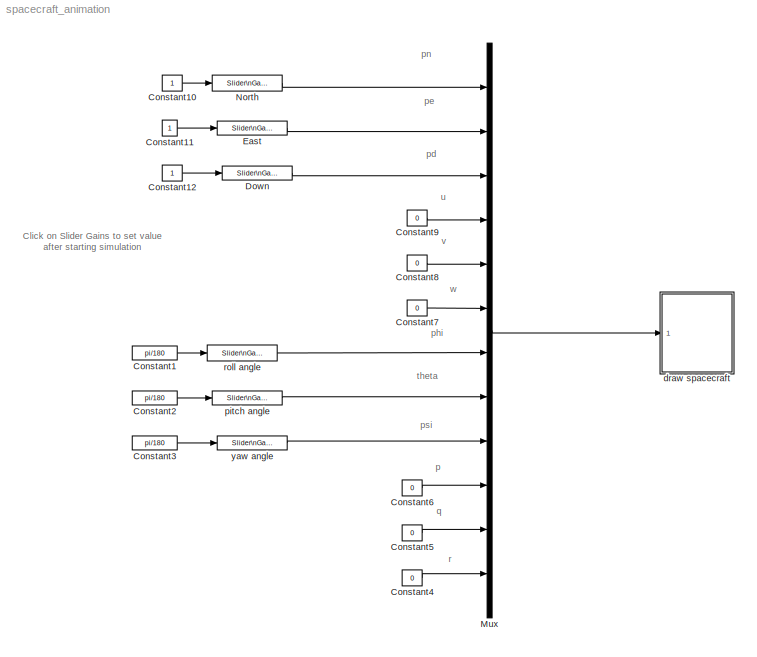
MODEL spacecraft_animation
KIND model
BLOCK [Constant] Constant1
  SID = 1
  Value = pi/180
BLOCK [Constant] Constant10
  SID = 2
BLOCK [Constant] Constant11
  SID = 3
BLOCK [Constant] Constant12
  SID = 4
BLOCK [Constant] Constant2
  SID = 5
  Value = pi/180
BLOCK [Constant] Constant3
  SID = 6
  Value = pi/180
BLOCK [Constant] Constant4
  SID = 7
  Value = 0
BLOCK [Constant] Constant5
  SID = 8
  Value = 0
BLOCK [Constant] Constant6
  SID = 9
  Value = 0
BLOCK [Constant] Constant7
  SID = 10
  Value = 0
BLOCK [Constant] Constant8
  SID = 11
  Value = 0
BLOCK [Constant] Constant9
  SID = 12
  Value = 0
BLOCK [Reference] Down  REF=simulink/Math\nOperations/Slider\nGain
  Ports = [1, 1]
  SID = 13
  SourceBlock = simulink/Math\nOperations/Slider\nGain
  SourceProductBaseCode = SL
  SourceProductName = Simulink
  SourceType = Slider Gain
  gain = -1
  high = 10
  low = -10
BLOCK [Reference] East  REF=simulink/Math\nOperations/Slider\nGain
  Ports = [1, 1]
  SID = 14
  SourceBlock = simulink/Math\nOperations/Slider\nGain
  SourceProductBaseCode = SL
  SourceProductName = Simulink
  SourceType = Slider Gain
  gain = 2
  high = 10
  low = -10
BLOCK [Mux] Mux
  DisplayOption = bar
  Inputs = 12
  Ports = [12, 1]
  SID = 15
BLOCK [Reference] North  REF=simulink/Math\nOperations/Slider\nGain
  Ports = [1, 1]
  SID = 16
  SourceBlock = simulink/Math\nOperations/Slider\nGain
  SourceProductBaseCode = SL
  SourceProductName = Simulink
  SourceType = Slider Gain
  gain = -4.2
  high = 10
  low = -10
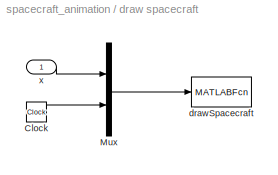
BLOCK [SubSystem] draw spacecraft
  Ports = [1]
  RequestExecContextInheritance = off
  SID = 17
BLOCK [Clock] draw spacecraft/Clock
  SID = 19
BLOCK [Mux] draw spacecraft/Mux
  DisplayOption = bar
  Inputs = 2
  Ports = [2, 1]
  SID = 20
BLOCK [MATLABFcn] draw spacecraft/drawSpacecraft
  MATLABFcn = drawSpacecraft(u,V,F,patchcolors)
  OutputDimensions = 0
  Ports = [1]
  SID = 21
  SampleTime = 0.1
BLOCK [Inport] draw spacecraft/x
  IconDisplay = Port number
  SID = 18
BLOCK [Reference] pitch angle  REF=simulink/Math\nOperations/Slider\nGain
  Ports = [1, 1]
  SID = 22
  SourceBlock = simulink/Math\nOperations/Slider\nGain
  SourceProductBaseCode = SL
  SourceProductName = Simulink
  SourceType = Slider Gain
  gain = -7.7332
  high = 180
  low = -180
BLOCK [Reference] roll angle  REF=simulink/Math\nOperations/Slider\nGain
  Ports = [1, 1]
  SID = 23
  SourceBlock = simulink/Math\nOperations/Slider\nGain
  SourceProductBaseCode = SL
  SourceProductName = Simulink
  SourceType = Slider Gain
  gain = -36.0
  high = 180
  low = -180
BLOCK [Reference] yaw angle   REF=simulink/Math\nOperations/Slider\nGain
  Ports = [1, 1]
  SID = 24
  SourceBlock = simulink/Math\nOperations/Slider\nGain
  SourceProductBaseCode = SL
  SourceProductName = Simulink
  SourceType = Slider Gain
  gain = -9.8003
  high = 180
  low = -180
ANNOTATION (root): Click on Slider Gains to set value \nafter starting simulation
ANNOTATION (root): p
ANNOTATION (root): pd
ANNOTATION (root): pe
ANNOTATION (root): phi
ANNOTATION (root): pn
ANNOTATION (root): psi
ANNOTATION (root): q
ANNOTATION (root): r
ANNOTATION (root): theta
ANNOTATION (root): u
ANNOTATION (root): v
ANNOTATION (root): w
LINE Constant10:1 -> North:1
LINE Constant11:1 -> East:1
LINE Constant12:1 -> Down:1
LINE Constant1:1 -> roll angle:1
LINE Constant2:1 -> pitch angle:1
LINE Constant3:1 -> yaw angle :1
LINE Constant4:1 -> Mux:12
LINE Constant5:1 -> Mux:11
LINE Constant6:1 -> Mux:10
LINE Constant7:1 -> Mux:6
LINE Constant8:1 -> Mux:5
LINE Constant9:1 -> Mux:4
LINE Down:1 -> Mux:3
LINE East:1 -> Mux:2
LINE Mux:1 -> draw spacecraft:1
LINE North:1 -> Mux:1
LINE draw spacecraft/Clock:1 -> draw spacecraft/Mux:2
LINE draw spacecraft/Mux:1 -> draw spacecraft/drawSpacecraft:1
LINE draw spacecraft/x:1 -> draw spacecraft/Mux:1
LINE pitch angle:1 -> Mux:8
LINE roll angle:1 -> Mux:7
LINE yaw angle :1 -> Mux:9
